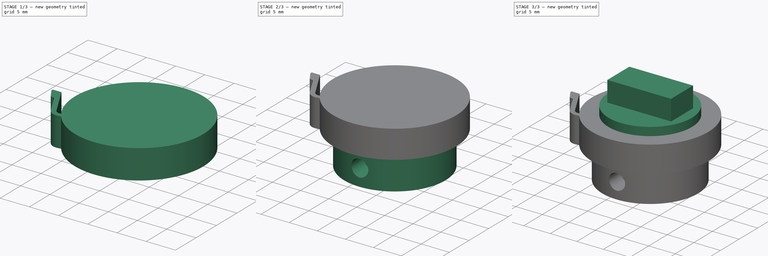
[diagram: build sequence overview — one tinted view per stage of 3, left to right]
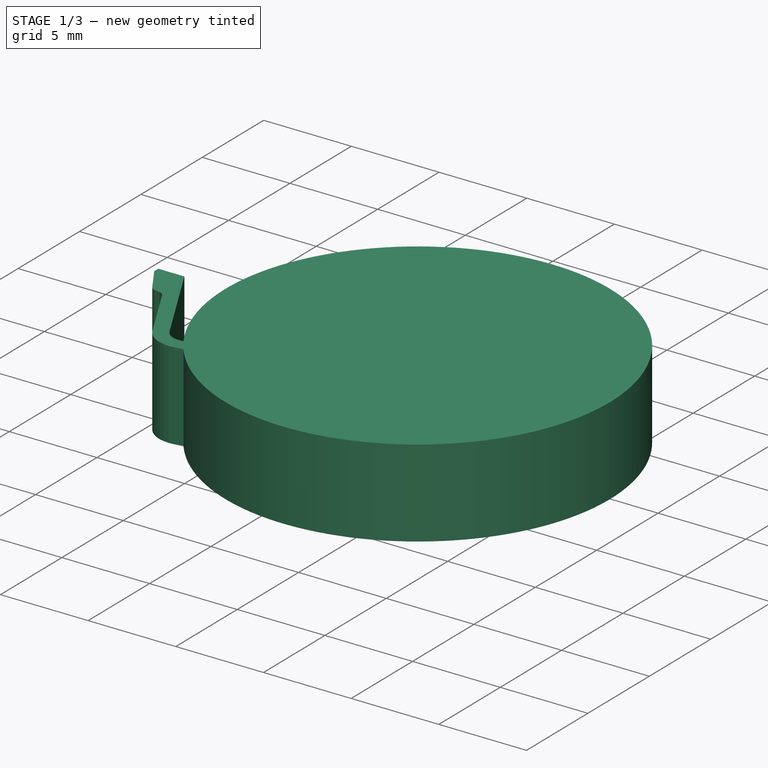
[diagram: stage 1 of 3 — iso view after this stage's code; geometry added in this stage tinted green]
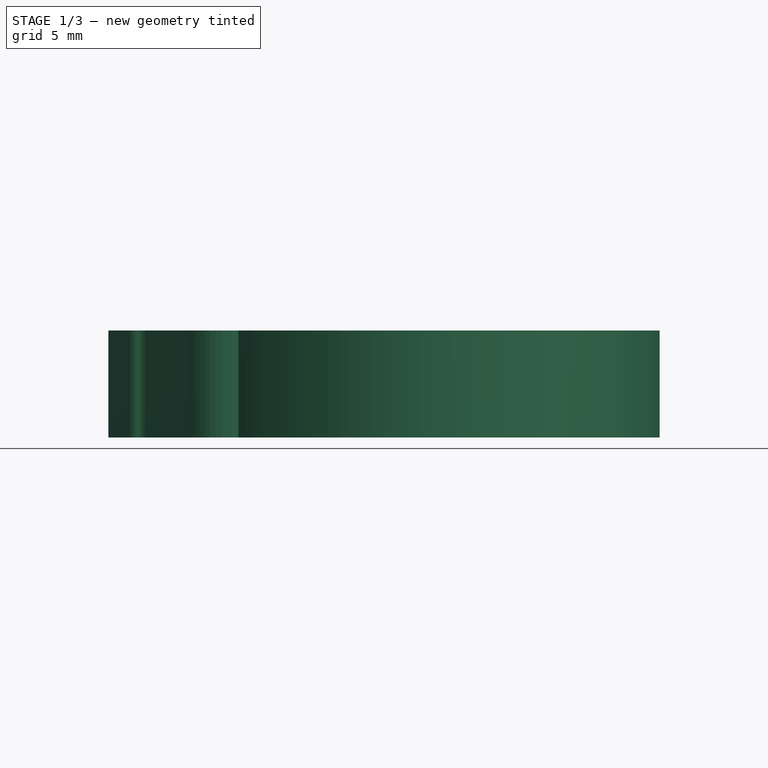
[diagram: stage 1 of 3 — front view after this stage's code; geometry added in this stage tinted green]
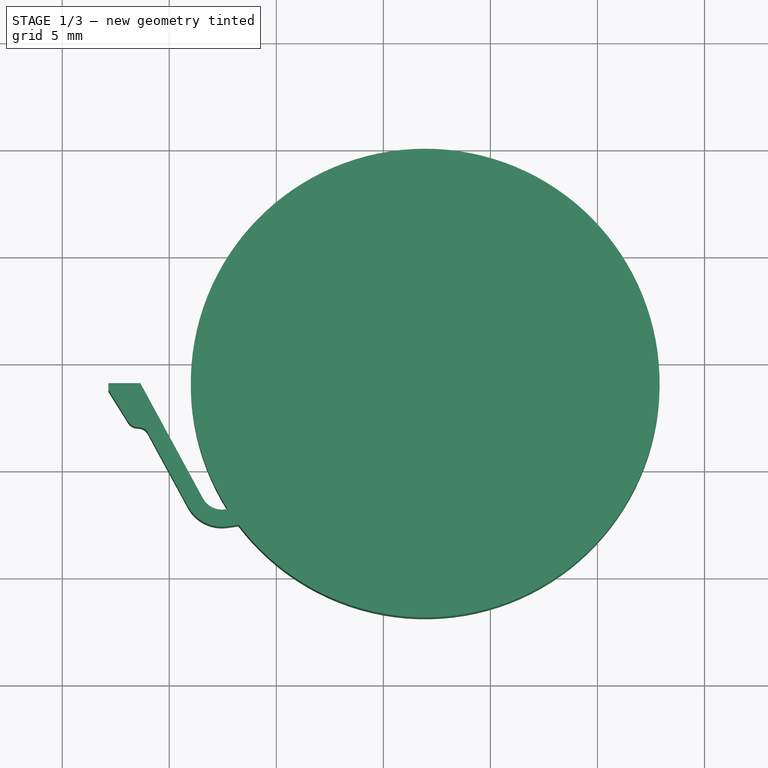
[diagram: stage 1 of 3 — top view after this stage's code; geometry added in this stage tinted green]
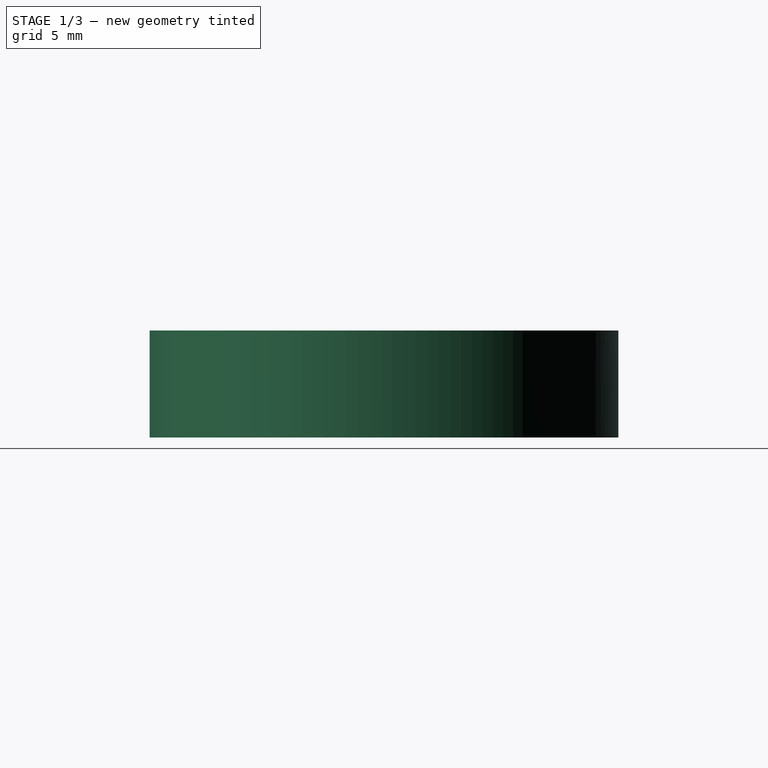
[diagram: stage 1 of 3 — right view after this stage's code; geometry added in this stage tinted green]
FCSTD DOCUMENT  (FreeCAD 0.21R33771 (Git))
Label: Motor_attachment
License: All rights reserved
LicenseURL: http://en.wikipedia.org/wiki/All_rights_reserved
objects: Sketcher::SketchObject×6, PartDesign::Pad×5, PartDesign::Pocket×2, Part::Feature×1, PartDesign::ShapeBinder×1, PartDesign::Body×1
note: 23 computed .brp shape members not serialized (recipe doc carries the construction recipe); baked Part::Feature solids carry a one-line shape summary decoded from their .brp

FEATURE [Part::Feature] Part__Feature  label="motor_attachment"
  shape: bbox 25.75 x 21.9 x 10.75 mm, 177 faces (baked)
FEATURE [PartDesign::ShapeBinder] ReferencePart__Feature
  Support = -> [Part__Feature]
  TraceSupport = false
FEATURE [Sketcher::SketchObject] Sketch
  ExternalGeometry = -> [ReferencePart__Feature]
  FullyConstrained = false
  MapMode = 5
  Placement = pos=(0,0,0.254467) rot=(1,0,0;3.14159rad)
  Support = -> [ReferencePart__Feature]
  sketch-geometry (37):
    g0: LineSegment StartX=22.7182 StartY=26.8286 StartZ=0 EndX=22.5995 EndY=26.8462 EndZ=0
    g1: LineSegment StartX=22.5995 StartY=26.8462 StartZ=0 EndX=22.4493 EndY=26.8577 EndZ=0
    g2: LineSegment StartX=22.4493 StartY=26.8577 StartZ=0 EndX=22.2973 EndY=26.8463 EndZ=0
    g3: LineSegment StartX=22.2973 StartY=26.8463 StartZ=0 EndX=22.1471 EndY=26.8091 EndZ=0
    g4: LineSegment StartX=22.1471 StartY=26.8091 StartZ=0 EndX=22.0036 EndY=26.7499 EndZ=0
    g5: LineSegment StartX=22.0036 StartY=26.7499 StartZ=0 EndX=21.8746 EndY=26.673 EndZ=0
    g6: LineSegment StartX=21.8746 StartY=26.673 StartZ=0 EndX=21.7574 EndY=26.5762 EndZ=0
    g7: LineSegment StartX=21.7574 StartY=26.5762 StartZ=0 EndX=21.6559 EndY=26.4622 EndZ=0
    g8: LineSegment StartX=21.6559 StartY=26.4622 StartZ=0 EndX=21.5727 EndY=26.3335 EndZ=0
    g9: LineSegment StartX=21.5727 StartY=26.3335 StartZ=0 EndX=18.6478 EndY=20.947 EndZ=0
    g10: LineSegment StartX=17.1572 StartY=20.947 StartZ=0 EndX=18.6478 EndY=20.947 EndZ=0
    g11: LineSegment StartX=17.1572 StartY=20.947 StartZ=0 EndX=17.1572 EndY=21.2728 EndZ=0
    g12: LineSegment StartX=17.1572 StartY=21.2728 StartZ=0 EndX=18.0851 EndY=22.758 EndZ=0
    g13: LineSegment StartX=18.0851 StartY=22.758 StartZ=0 EndX=18.1308 EndY=22.8196 EndZ=0
    g14: LineSegment StartX=18.1854 StartY=22.8739 StartZ=0 EndX=18.1308 EndY=22.8196 EndZ=0
    g15: LineSegment StartX=18.1854 StartY=22.8739 StartZ=0 EndX=18.2476 EndY=22.919 EndZ=0
    g16: LineSegment StartX=18.316 StartY=22.9541 StartZ=0 EndX=18.2476 EndY=22.919 EndZ=0
    g17: LineSegment StartX=18.316 StartY=22.9541 StartZ=0 EndX=18.389 EndY=22.9782 EndZ=0
    g18: LineSegment StartX=18.4648 StartY=22.9909 StartZ=0 EndX=18.389 EndY=22.9782 EndZ=0
    g19: LineSegment StartX=18.4648 StartY=22.9909 StartZ=0 EndX=18.5996 EndY=23.0029 EndZ=0
    g20: LineSegment StartX=18.5996 StartY=23.0029 StartZ=0 EndX=18.6803 EndY=23.0167 EndZ=0
    g21: LineSegment StartX=18.6803 StartY=23.0167 StartZ=0 EndX=18.7578 EndY=23.0438 EndZ=0
    g22: LineSegment StartX=18.7578 StartY=23.0438 StartZ=0 EndX=18.8299 EndY=23.083 EndZ=0
    g23: LineSegment StartX=18.8299 StartY=23.083 StartZ=0 EndX=18.8944 EndY=23.1334 EndZ=0
    g24: LineSegment StartX=18.8944 StartY=23.1334 StartZ=0 EndX=18.9499 EndY=23.1938 EndZ=0
    g25: LineSegment StartX=18.9499 StartY=23.1938 StartZ=0 EndX=18.9948 EndY=23.2624 EndZ=0
    g26: LineSegment StartX=18.9948 StartY=23.2624 StartZ=0 EndX=20.8706 EndY=26.7163 EndZ=0
    g27: LineSegment StartX=20.8706 StartY=26.7163 StartZ=0 EndX=21.0193 EndY=26.9467 EndZ=0
    g28: LineSegment StartX=21.202 StartY=27.1515 StartZ=0 EndX=21.0193 EndY=26.9467 EndZ=0
    g29: LineSegment StartX=21.202 StartY=27.1515 StartZ=0 EndX=21.4133 EndY=27.3274 EndZ=0
    g30: LineSegment StartX=21.6494 StartY=27.4673 StartZ=0 EndX=21.4133 EndY=27.3274 EndZ=0
    g31: LineSegment StartX=21.6494 StartY=27.4673 StartZ=0 EndX=21.9044 EndY=27.5716 EndZ=0
    g32: LineSegment StartX=21.9044 StartY=27.5716 StartZ=0 EndX=22.1717 EndY=27.6342 EndZ=0
    g33: LineSegment StartX=22.4454 StartY=27.657 StartZ=0 EndX=22.1717 EndY=27.6342 EndZ=0
    g34: LineSegment StartX=22.4454 StartY=27.657 StartZ=0 EndX=22.7193 EndY=27.6368 EndZ=0
    g35: LineSegment StartX=22.7193 StartY=27.6368 StartZ=0 EndX=23.2274 EndY=27.5605 EndZ=0
    g36: ArcOfCircle CenterX=31.9541 CenterY=20.9463 CenterZ=0 NormalX=0 NormalY=0 NormalZ=1 AngleXU=0 Radius=10.95 StartAngle=2.57449 EndAngle=8.77622
  constraints (75):
    c: Coincident(g0,g-39)
    c: Coincident(g1,g-38)
    c: Coincident(g2,g1)
    c: Coincident(g2,g-37)
    c: Coincident(g3,g2)
    c: Coincident(g3,g-36)
    c: Coincident(g4,g3)
    c: Coincident(g4,g-35)
    c: Coincident(g5,g4)
    c: Coincident(g5,g-34)
    c: Coincident(g6,g5)
    c: Coincident(g6,g-33)
    c: Coincident(g7,g6)
    c: Coincident(g7,g-32)
    c: Coincident(g8,g7)
    c: Coincident(g8,g-31)
    c: Coincident(g9,g8)
    c: Coincident(g9,g-5)
    c: Coincident(g10,g9)
    c: Horizontal(g10)
    c: Coincident(g11,g10)
    c: Coincident(g11,g-7)
    c: Vertical(g11)
    c: Coincident(g12,g11)
    c: Coincident(g12,g-8)
    c: Coincident(g13,g12)
    c: Coincident(g13,g-9)
    c: Coincident(g14,g13)
    c: Coincident(g15,g14)
    c: Coincident(g15,g-11)
    c: Coincident(g16,g15)
    c: Coincident(g17,g16)
    c: Coincident(g17,g-13)
    c: Coincident(g18,g17)
    c: Coincident(g19,g18)
    c: Coincident(g19,g-15)
    c: Coincident(g20,g19)
    c: Coincident(g20,g-16)
    c: Coincident(g21,g20)
    c: Coincident(g21,g-17)
    c: Coincident(g22,g21)
    c: Coincident(g22,g-18)
    c: Coincident(g23,g22)
    c: Coincident(g23,g-19)
    c: Coincident(g24,g23)
    c: Coincident(g24,g-20)
    c: Coincident(g25,g24)
    c: Coincident(g25,g-21)
    c: Coincident(g26,g25)
    c: Coincident(g26,g-22)
    c: Coincident(g27,g26)
    c: Coincident(g27,g-23)
    c: Coincident(g28,g27)
    c: Coincident(g29,g28)
    c: Coincident(g29,g-25)
    c: Coincident(g30,g29)
    c: Coincident(g31,g30)
    c: Coincident(g31,g-27)
    c: Coincident(g32,g31)
    c: Coincident(g32,g-28)
    c: Coincident(g33,g32)
    c: Coincident(g34,g33)
    c: Coincident(g34,g-30)
    c: Coincident(g35,g34)
    c: Coincident(g35,g-30)
    c: Coincident(g33,g-29)
    c: Coincident(g-26,g30)
    c: Coincident(g28,g-24)
    c: Coincident(g1,g0)
    c: Coincident(g0,g-39)
    c: Coincident(g-14,g18)
    c: Coincident(g-12,g16)
    c: Coincident(g-10,g14)
    c: Coincident(g36,g-3)
    c: Coincident(g36,g35)
FEATURE [PartDesign::Pad] Pad
  Direction = (0,0,-1)
  Length = 5
  Length2 = 10
  Profile = -> Sketch
  ReferenceAxis = -> Sketch [N_Axis]
  Type = 0
FEATURE [PartDesign::Pad] Pad001
  BaseFeature = -> Pad
  Direction = (0,0,-1)
  Length = 1
  Length2 = 10
  Profile = -> Sketch
  ReferenceAxis = -> Sketch [N_Axis]
  Type = 0
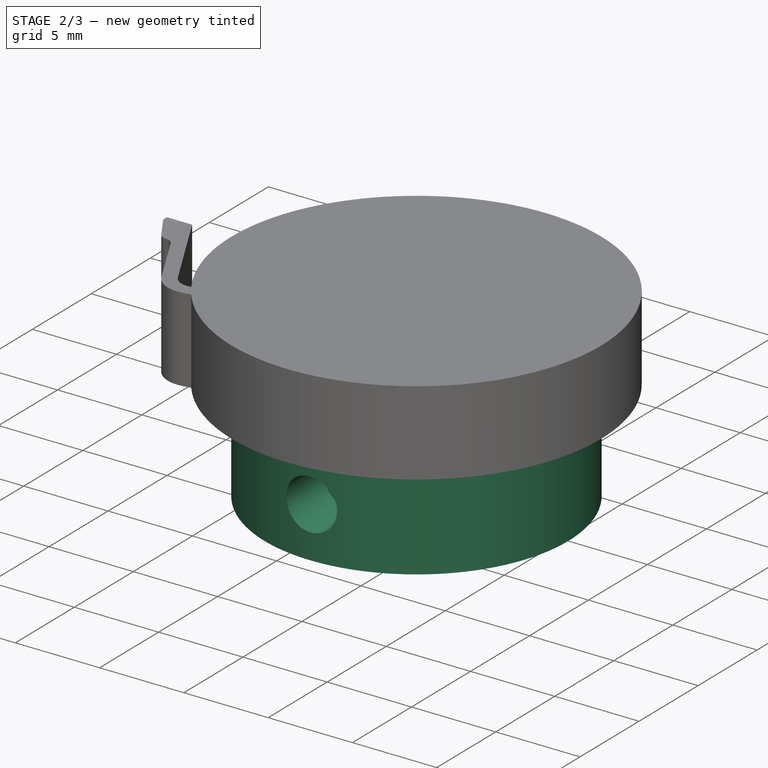
[diagram: stage 2 of 3 — iso view after this stage's code; geometry added in this stage tinted green]
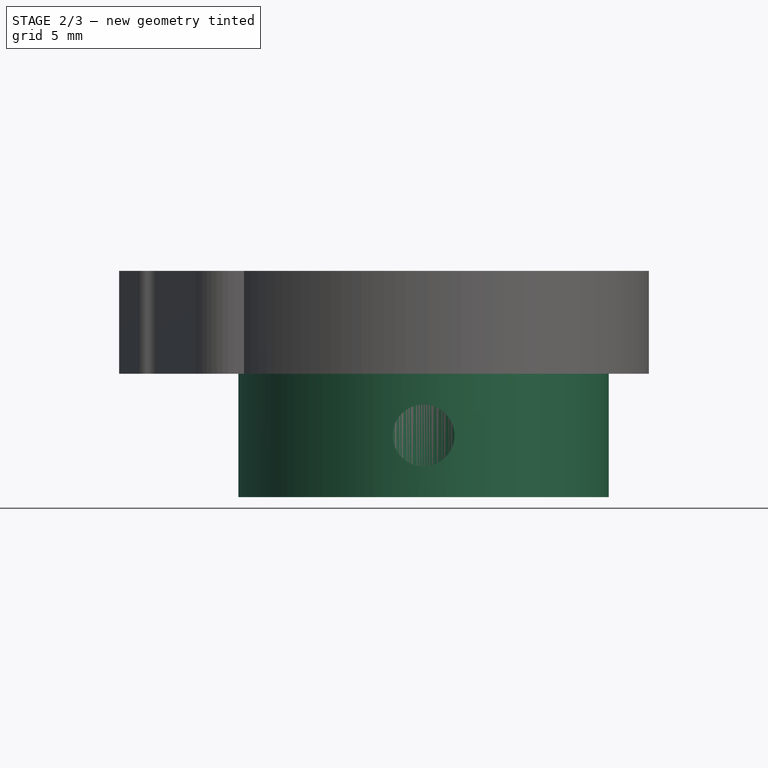
[diagram: stage 2 of 3 — front view after this stage's code; geometry added in this stage tinted green]
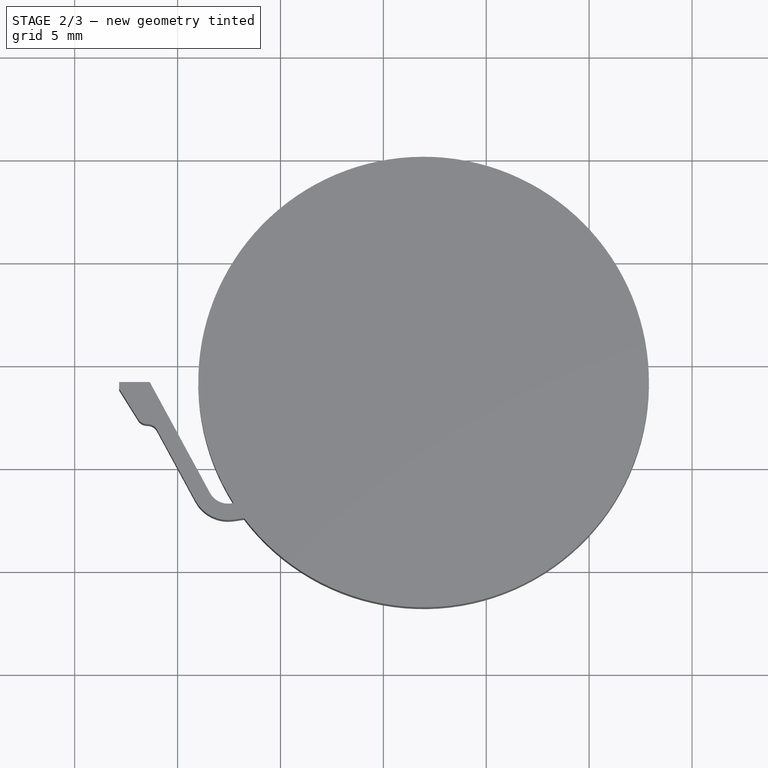
[diagram: stage 2 of 3 — top view after this stage's code; geometry added in this stage tinted green]
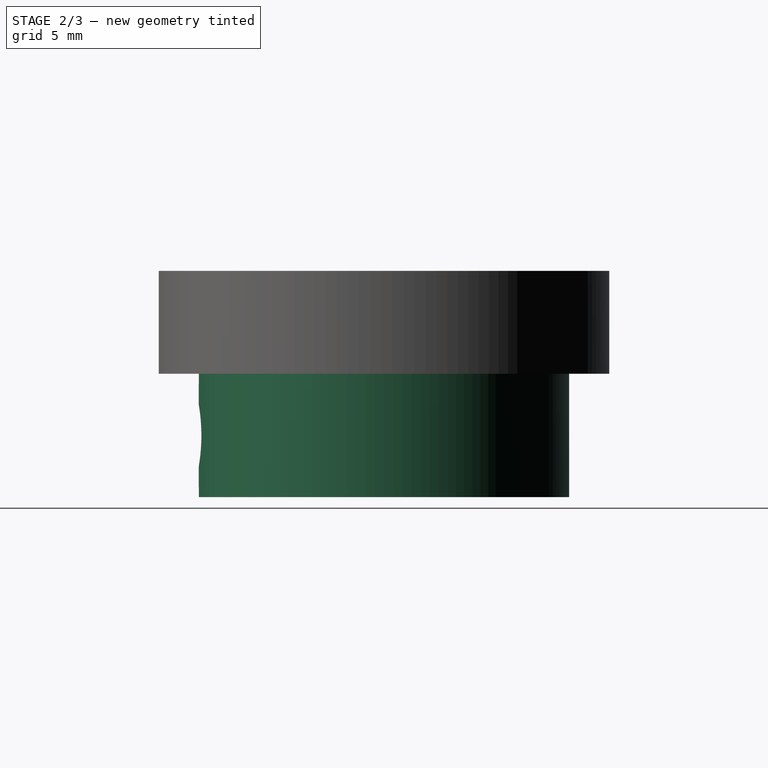
[diagram: stage 2 of 3 — right view after this stage's code; geometry added in this stage tinted green]
FEATURE [Sketcher::SketchObject] Sketch001
  ExternalGeometry = -> [Pad]
  FullyConstrained = true
  MapMode = 5
  Placement = pos=(0,0,-4.74553) rot=(1,0,0;3.14159rad)
  Support = -> [Pad]
  sketch-geometry (1):
    g0: Circle CenterX=31.9541 CenterY=20.9463 CenterZ=0 NormalX=0 NormalY=0 NormalZ=1 AngleXU=0 Radius=9
  constraints (2):
    c: Coincident(g0,g-3)
    c: Diameter(g0) = 18
FEATURE [PartDesign::Pad] Pad002
  BaseFeature = -> Pad001
  Direction = (0,0,-1)
  Length = 6
  Length2 = 10
  Profile = -> Sketch001
  ReferenceAxis = -> Sketch001 [N_Axis]
  Type = 0
FEATURE [Sketcher::SketchObject] Sketch002
  FullyConstrained = false
  MapMode = 5
  Placement = pos=(0,0,-10.7455) rot=(1,0,0;3.14159rad)
  Support = -> [Pad002]
  sketch-geometry (5):
    g0: Circle CenterX=31.9541 CenterY=20.9463 CenterZ=0 NormalX=0 NormalY=0 NormalZ=1 AngleXU=0 Radius=2.5
    g1: LineSegment StartX=29.2441 StartY=26.6463 StartZ=0 EndX=34.6641 EndY=26.6463 EndZ=0
    g2: LineSegment StartX=34.6641 StartY=26.6463 StartZ=0 EndX=34.6641 EndY=24.4463 EndZ=0
    g3: LineSegment StartX=34.6641 StartY=24.4463 StartZ=0 EndX=29.2441 EndY=24.4463 EndZ=0
    g4: LineSegment StartX=29.2441 StartY=24.4463 StartZ=0 EndX=29.2441 EndY=26.6463 EndZ=0
  constraints (13):
    c: Diameter(g0) = 5
    c: Coincident(g1,g2)
    c: Coincident(g2,g3)
    c: Coincident(g3,g4)
    c: Coincident(g4,g1)
    c: Horizontal(g1)
    c: Vertical(g2)
    c: Vertical(g4)
    c: DistanceX(g3,g3) = 5.42
    c: DistanceX(g3,g0) = 2.71
    c: DistanceY(g2,g2) = 2.2
    c: DistanceY(g0,g2) = 3.5
    c: Horizontal(g3)
FEATURE [PartDesign::Pocket] Pocket
  BaseFeature = -> Pad002
  Direction = (0,0,1)
  Length = 9
  Length2 = 5
  Profile = -> Sketch002
  ReferenceAxis = -> Sketch002 [N_Axis]
  Type = 0
FEATURE [Sketcher::SketchObject] Sketch003
  AttachmentOffset = pos=(0,0,31) rot=(0,0,1;0rad)
  ExternalGeometry = -> [Pocket]
  FullyConstrained = true
  MapMode = 5
  Placement = pos=(0,-31,-6.9e-15) rot=(1,0,0;1.5708rad)
  Support = -> [XZ_Plane]
  sketch-geometry (1):
    g0: Circle CenterX=31.9541 CenterY=-7.74553 CenterZ=0 NormalX=0 NormalY=0 NormalZ=1 AngleXU=0 Radius=1.5
  constraints (3):
    c: Diameter(g0) = 3
    c: DistanceY(g-3,g0) = 3
    c: DistanceX(g0,g-3) = 9
FEATURE [PartDesign::Pocket] Pocket001
  BaseFeature = -> Pocket
  Direction = (0,1,-2e-16)
  Length = 10
  Length2 = 5
  Profile = -> Sketch003
  ReferenceAxis = -> Sketch003 [N_Axis]
  Type = 0
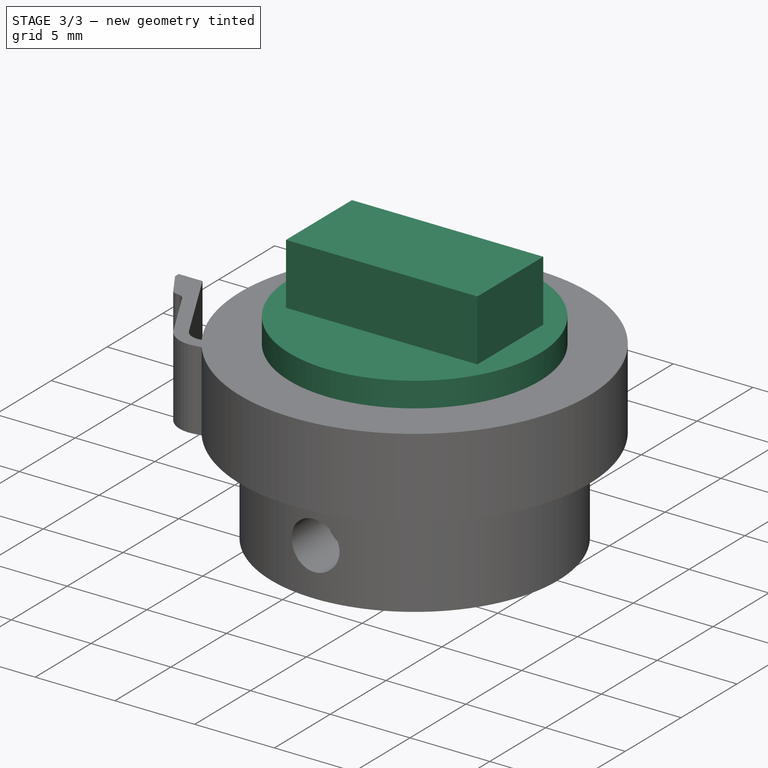
[diagram: stage 3 of 3 — iso view after this stage's code; geometry added in this stage tinted green]
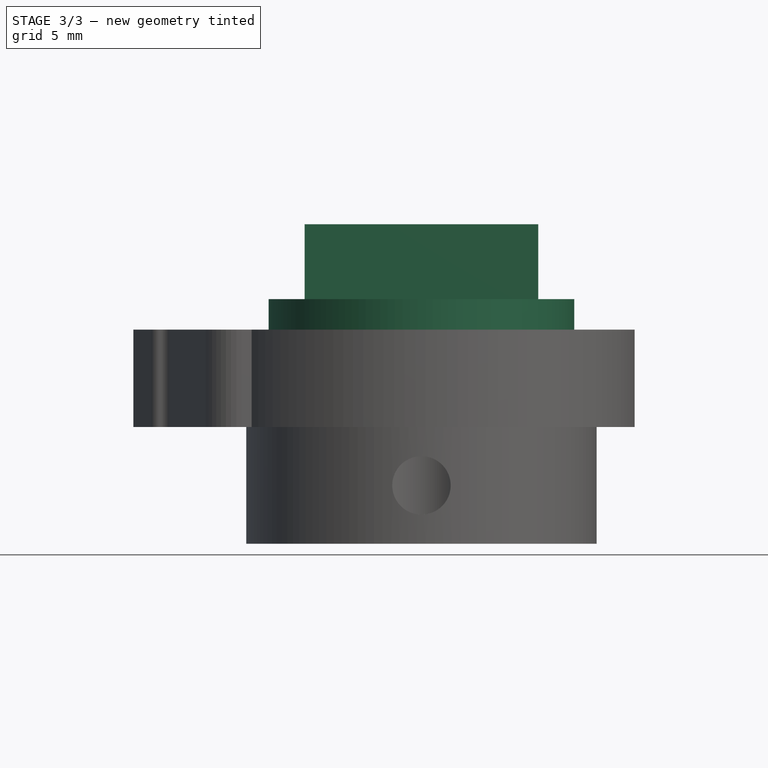
[diagram: stage 3 of 3 — front view after this stage's code; geometry added in this stage tinted green]
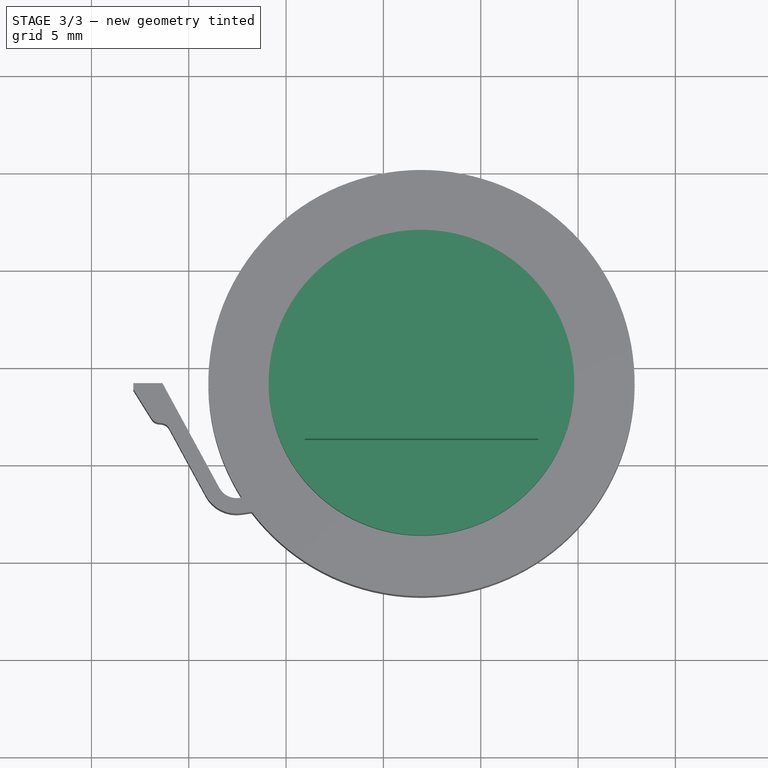
[diagram: stage 3 of 3 — top view after this stage's code; geometry added in this stage tinted green]
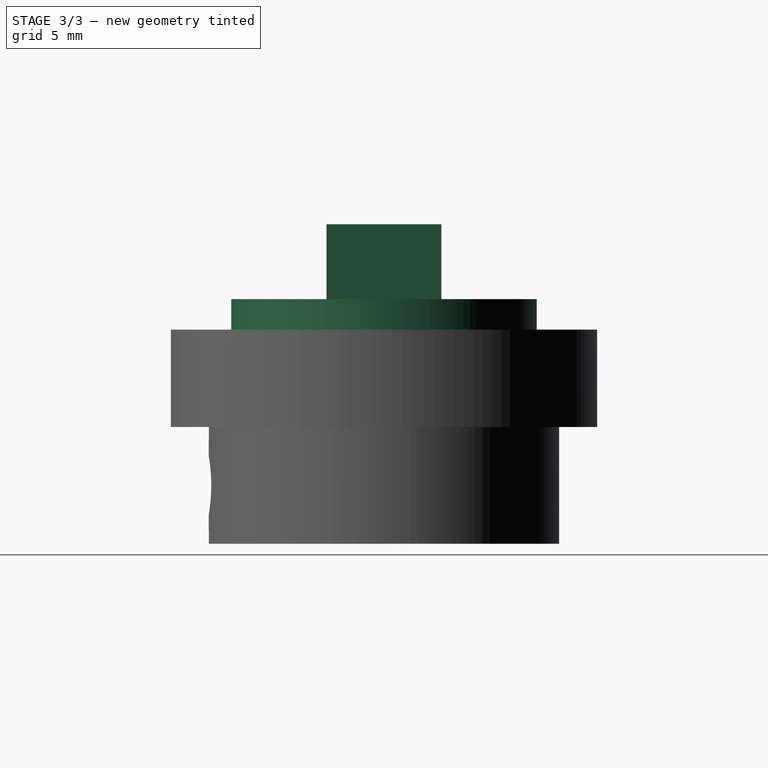
[diagram: stage 3 of 3 — right view after this stage's code; geometry added in this stage tinted green]
FEATURE [Sketcher::SketchObject] Sketch004
  ExternalGeometry = -> [Pocket001]
  FullyConstrained = true
  MapMode = 5
  Support = -> [XY_Plane]
  sketch-geometry (1):
    g0: Circle CenterX=31.9541 CenterY=-20.9463 CenterZ=0 NormalX=0 NormalY=0 NormalZ=1 AngleXU=0 Radius=7.85
  constraints (2):
    c: Coincident(g0,g-3)
    c: Diameter(g0) = 15.7
FEATURE [PartDesign::Pad] Pad003
  BaseFeature = -> Pocket001
  Direction = (0,0,1)
  Length = 1.82
  Length2 = 10
  Profile = -> Sketch004
  ReferenceAxis = -> Sketch004 [N_Axis]
  Type = 0
FEATURE [Sketcher::SketchObject] Sketch005
  ExternalGeometry = -> [Pad003]
  FullyConstrained = true
  MapMode = 5
  Placement = pos=(0,0,1.82) rot=(0,0,1;0rad)
  Support = -> [Pad003]
  sketch-geometry (5):
    g0: LineSegment StartX=25.9541 StartY=-23.8963 StartZ=0 EndX=25.9541 EndY=-17.9963 EndZ=0
    g1: LineSegment StartX=25.9541 StartY=-17.9963 StartZ=0 EndX=37.9541 EndY=-17.9963 EndZ=0
    g2: LineSegment StartX=37.9541 StartY=-17.9963 StartZ=0 EndX=37.9541 EndY=-23.8963 EndZ=0
    g3: LineSegment StartX=37.9541 StartY=-23.8963 StartZ=0 EndX=25.9541 EndY=-23.8963 EndZ=0
    g4: GeomPoint X=31.9541 Y=-20.9463 Z=0
  constraints (12):
    c: Coincident(g0,g1)
    c: Coincident(g1,g2)
    c: Coincident(g2,g3)
    c: Coincident(g3,g0)
    c: Horizontal(g1)
    c: Horizontal(g3)
    c: Vertical(g0)
    c: Vertical(g2)
    c: Symmetric(g1,g0,g4)
    c: Coincident(g4,g-3)
    c: DistanceX(g1,g1) = 12
    c: DistanceY(g2,g2) = 5.9
FEATURE [PartDesign::Pad] Pad004
  BaseFeature = -> Pad003
  Direction = (0,0,1)
  Length = 3.85
  Length2 = 10
  Profile = -> Sketch005
  ReferenceAxis = -> Sketch005 [N_Axis]
  Type = 0
FEATURE [PartDesign::Body] Body
  Group = -> [ReferencePart__Feature,Sketch,Pad,Pad001,Sketch001,Pad002,Sketch002,Pocket,Sketch003,Pocket001,Sketch004,Pad003,Sketch005,Pad004]
  Origin = -> Origin
  Placement = pos=(0,14,0) rot=(0,0,1;0rad)
  Tip = -> Pad004
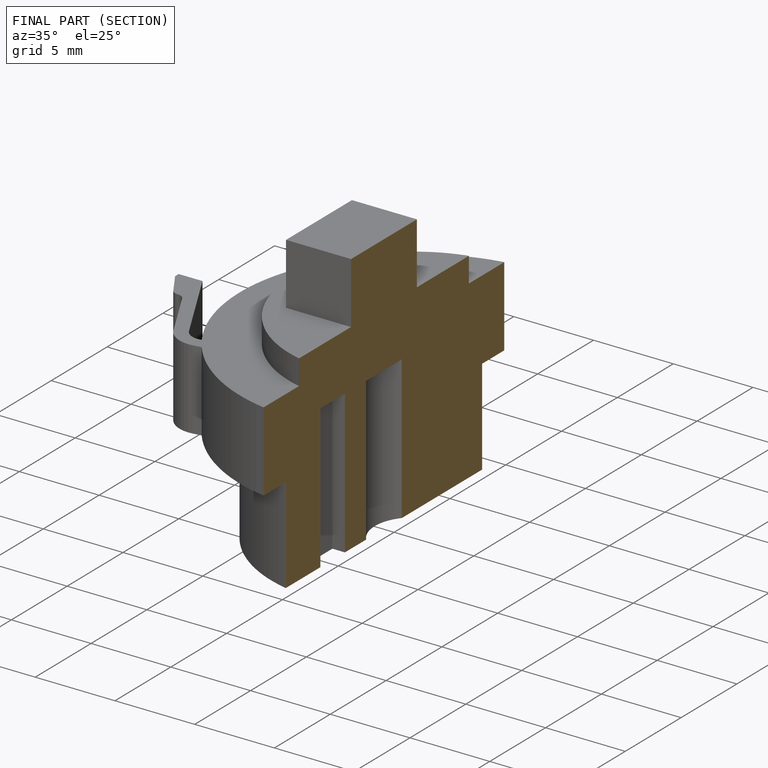
[diagram: finished part — half-section view (interior)]
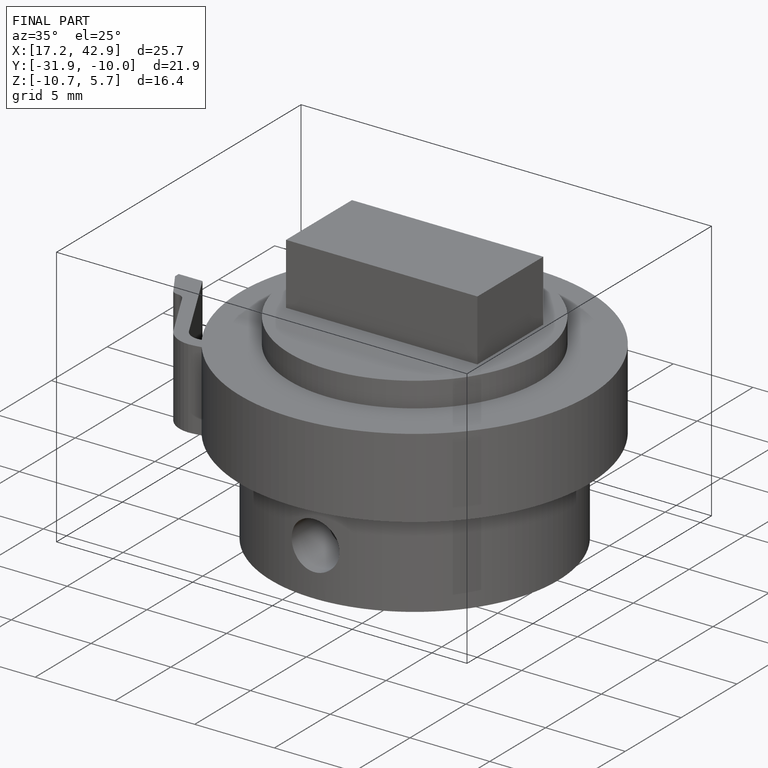
[diagram: finished part — iso view with bounding-box wireframe]
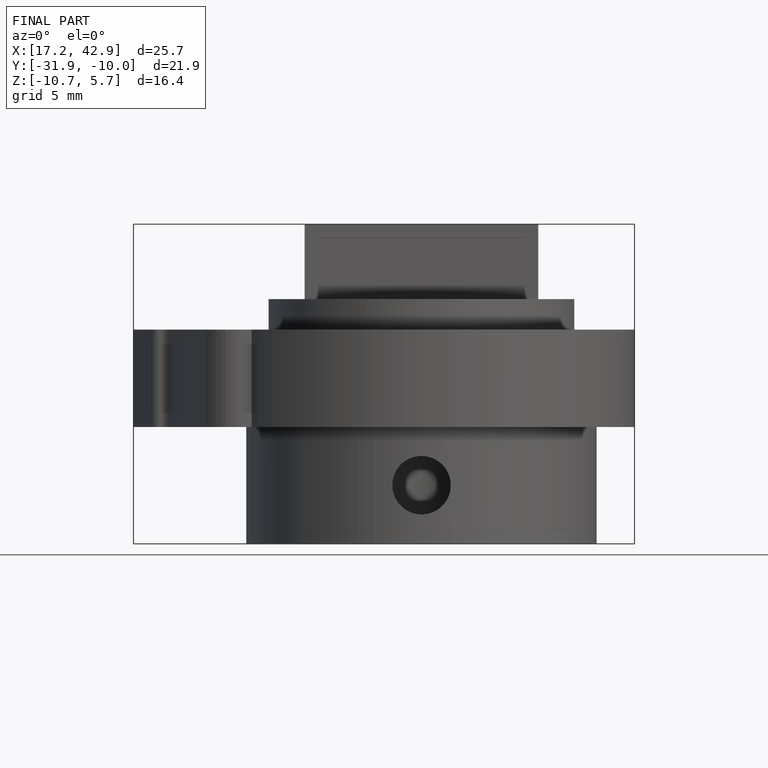
[diagram: finished part — front view with bounding-box wireframe]
